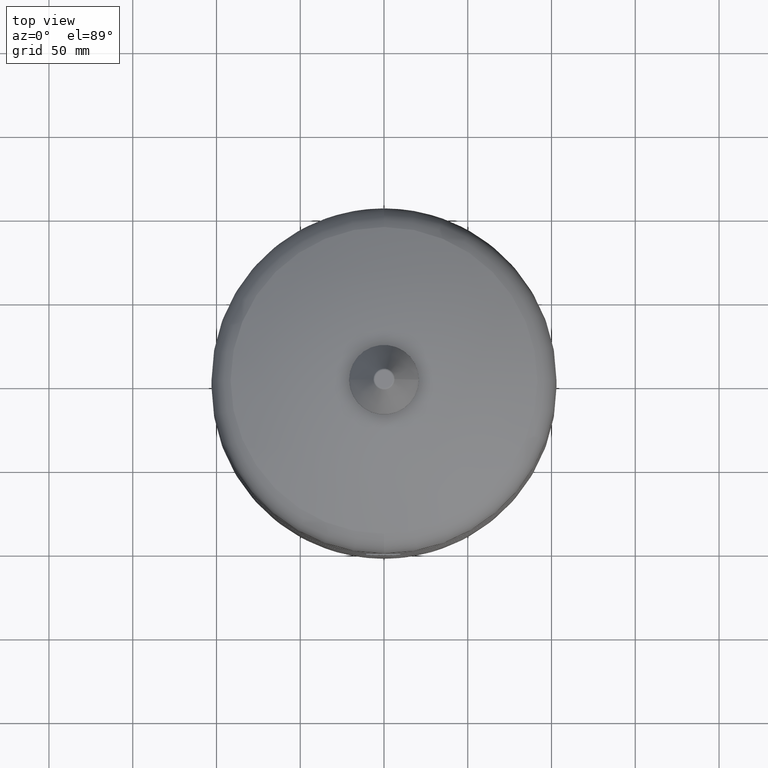
[diagram: clean part render]
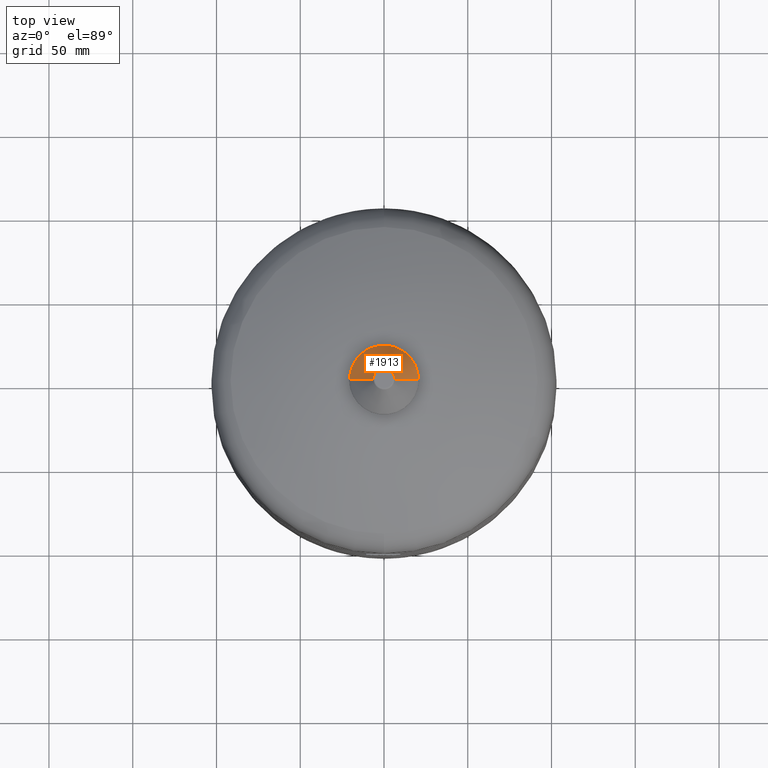
[diagram: same view with one face highlighted and labeled with its STEP entity id]
A machine part, top view. The second image highlights one B-rep face of the part: STEP entity #1913.
In plain terms, the highlighted conical surface has half-angle 30.964 deg.
Its self-contained STEP definition (entity closure, byte-faithful):
#1769=CARTESIAN_POINT('',(-20.614128183429354,0.0,300.643119694284390));
#1770=VERTEX_POINT('',#1769);
#1787=CARTESIAN_POINT('',(20.614128183429351,-2.524419E-015,300.643119694284390));
#1788=VERTEX_POINT('',#1787);
#1811=CARTESIAN_POINT('',(-6.364128183429356,0.0,324.393119694284390));
#1812=VERTEX_POINT('',#1811);
#1813=CARTESIAN_POINT('',(-20.614128183429354,0.0,300.643119694284390));
#1814=DIRECTION('',(0.514495755427526,0.0,0.857492925712544));
#1815=VECTOR('',#1814,27.697021500515177);
#1816=LINE('',#1813,#1815);
#1817=EDGE_CURVE('',#1770,#1812,#1816,.T.);
#1820=CARTESIAN_POINT('',(6.364128183429356,-7.793552E-016,324.393119694284390));
#1821=VERTEX_POINT('',#1820);
#1822=CARTESIAN_POINT('',(20.614128183429351,-2.524419E-015,300.643119694284390));
#1823=DIRECTION('',(-0.514495755427526,6.300548E-017,0.857492925712544));
#1824=VECTOR('',#1823,27.697021500515174);
#1825=LINE('',#1822,#1824);
#1826=EDGE_CURVE('',#1788,#1821,#1825,.T.);
#1886=CARTESIAN_POINT('',(-1.773085E-016,0.0,324.393119694284390));
#1887=DIRECTION('',(0.0,0.0,-1.0));
#1888=DIRECTION('',(-1.0,0.0,0.0));
#1889=AXIS2_PLACEMENT_3D('',#1886,#1887,#1888);
#1890=CIRCLE('',#1889,6.364128183429356);
#1891=EDGE_CURVE('',#1812,#1821,#1890,.T.);
#1896=CARTESIAN_POINT('',(-3.646756E-015,0.0,312.518119694284390));
#1897=DIRECTION('',(-2.921640E-016,0.0,-1.0));
#1898=DIRECTION('',(-1.0,0.0,0.0));
#1899=AXIS2_PLACEMENT_3D('',#1896,#1897,#1898);
#1900=CONICAL_SURFACE('',#1899,13.489128183429353,30.963756532073528);
#1901=ORIENTED_EDGE('',*,*,#1817,.T.);
#1902=ORIENTED_EDGE('',*,*,#1891,.T.);
#1903=ORIENTED_EDGE('',*,*,#1826,.F.);
#1904=CARTESIAN_POINT('',(-7.116202E-015,0.0,300.643119694284390));
#1905=DIRECTION('',(0.0,0.0,-1.0));
#1906=DIRECTION('',(-1.0,0.0,0.0));
#1907=AXIS2_PLACEMENT_3D('',#1904,#1905,#1906);
#1908=CIRCLE('',#1907,20.614128183429351);
#1909=EDGE_CURVE('',#1770,#1788,#1908,.T.);
#1910=ORIENTED_EDGE('',*,*,#1909,.F.);
#1911=EDGE_LOOP('',(#1901,#1902,#1903,#1910));
#1912=FACE_OUTER_BOUND('',#1911,.T.);
#1913=ADVANCED_FACE('',(#1912),#1900,.T.);